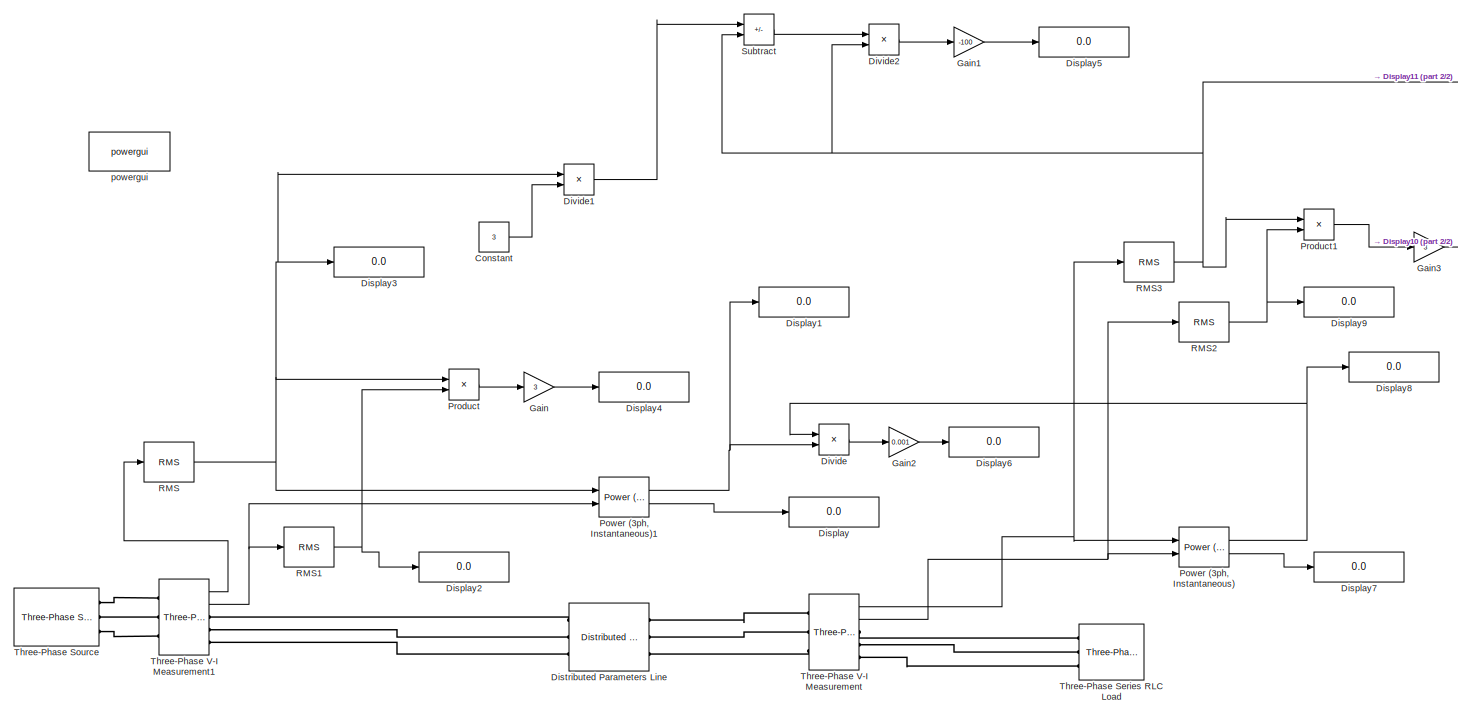
[diagram: root canvas - part 1/2, most of the canvas]
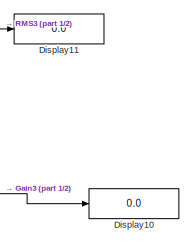
[diagram: root canvas - part 2/2, top right region]
MODEL slx_b03780a4cfd4
KIND model
CONFIG AbsTol = auto
CONFIG EnableMultiTasking = off
CONFIG FixedStep = auto
CONFIG MaxStep = auto
CONFIG MinStep = auto
CONFIG RelTol = 1e-3
CONFIG SampleTimeConstraint = Unconstrained
CONFIG SolverName = VariableStepAuto
CONFIG StartTime = 0.0
CONFIG StopTime = 10.0
BLOCK [Constant] Constant
  Value = 3
BLOCK [Display] Display
  Decimation = 1
  Ports = [1]
BLOCK [Display] Display1
  Decimation = 1
  Ports = [1]
BLOCK [Display] Display10
  Decimation = 1
  Ports = [1]
BLOCK [Display] Display11
  Decimation = 1
  Ports = [1]
BLOCK [Display] Display2
  Decimation = 1
  Ports = [1]
BLOCK [Display] Display3
  Decimation = 1
  Ports = [1]
BLOCK [Display] Display4
  Decimation = 1
  Ports = [1]
BLOCK [Display] Display5
  Decimation = 1
  Ports = [1]
BLOCK [Display] Display6
  Decimation = 1
  Ports = [1]
BLOCK [Display] Display7
  Decimation = 1
  Ports = [1]
BLOCK [Display] Display8
  Decimation = 1
  Ports = [1]
BLOCK [Display] Display9
  Decimation = 1
  Ports = [1]
BLOCK [Reference] Distributed Parameters Line  REF=spsDistributedParametersLineLib/Distributed Parameters Line
  Ports = [0, 0, 0, 0, 0, 3, 3]
  SourceBlock = spsDistributedParametersLineLib/Distributed Parameters Line
  SourceProductBaseCode = PS
  SourceType = Distributed Parameters Line
BLOCK [Product] Divide
  Inputs = */
  Ports = [2, 1]
BLOCK [Product] Divide1
  Inputs = */
  Ports = [2, 1]
BLOCK [Product] Divide2
  Inputs = */
  Ports = [2, 1]
BLOCK [Gain] Gain
  Gain = 3
BLOCK [Gain] Gain1
  Gain = -100
BLOCK [Gain] Gain2
  Gain = 0.001
BLOCK [Gain] Gain3
  Gain = 3
BLOCK [Reference] Power (3ph, Instantaneous)  REF=spsPower3phInstantaneousLib/Power
(3ph, Instantaneous)
  Ports = [2, 2]
  SourceBlock = spsPower3phInstantaneousLib/Power\n(3ph, Instantaneous)
  SourceProductBaseCode = PS
  SourceType = Power (3ph, Instantaneous)
BLOCK [Reference] Power (3ph, Instantaneous)1  REF=spsPower3phInstantaneousLib/Power
(3ph, Instantaneous)
  Ports = [2, 2]
  SourceBlock = spsPower3phInstantaneousLib/Power\n(3ph, Instantaneous)
  SourceProductBaseCode = PS
  SourceType = Power (3ph, Instantaneous)
BLOCK [Product] Product
  Ports = [2, 1]
BLOCK [Product] Product1
  Ports = [2, 1]
BLOCK [Reference] RMS  REF=spsRMSLib/RMS
  Ports = [1, 1]
  SourceBlock = spsRMSLib/RMS
  SourceProductBaseCode = PS
  SourceType = RMS
BLOCK [Reference] RMS1  REF=spsRMSLib/RMS
  Ports = [1, 1]
  SourceBlock = spsRMSLib/RMS
  SourceProductBaseCode = PS
  SourceType = RMS
BLOCK [Reference] RMS2  REF=spsRMSLib/RMS
  Ports = [1, 1]
  SourceBlock = spsRMSLib/RMS
  SourceProductBaseCode = PS
  SourceType = RMS
BLOCK [Reference] RMS3  REF=spsRMSLib/RMS
  Ports = [1, 1]
  SourceBlock = spsRMSLib/RMS
  SourceProductBaseCode = PS
  SourceType = RMS
BLOCK [Sum] Subtract
  IconShape = rectangular
  Inputs = +-
  Ports = [2, 1]
BLOCK [Reference] Three-Phase Series RLC Load  REF=spsThreePhaseSeriesRLCLoadLib/Three-Phase
Series RLC Load
  AttributesFormatString = \n
  NameLocation = right
  Ports = [0, 0, 0, 0, 0, 3]
  SourceBlock = spsThreePhaseSeriesRLCLoadLib/Three-Phase\nSeries RLC Load
  SourceProductBaseCode = PS
  SourceType = Three-Phase Series RLC Load
BLOCK [Reference] Three-Phase Source  REF=spsThreePhaseSourceLib/Three-Phase Source
  Ports = [0, 0, 0, 0, 0, 0, 3]
  SourceBlock = spsThreePhaseSourceLib/Three-Phase Source
  SourceProductBaseCode = PS
  SourceType = Three-Phase Source
BLOCK [Reference] Three-Phase V-I Measurement  REF=spsThreePhaseVIMeasurementLib/Three-Phase
V-I Measurement
  Ports = [0, 2, 0, 0, 0, 3, 3]
  SourceBlock = spsThreePhaseVIMeasurementLib/Three-Phase\nV-I Measurement
  SourceProductBaseCode = PS
  SourceType = Three-Phase VI Measurement
BLOCK [Reference] Three-Phase V-I Measurement1  REF=spsThreePhaseVIMeasurementLib/Three-Phase
V-I Measurement
  Ports = [0, 2, 0, 0, 0, 3, 3]
  SourceBlock = spsThreePhaseVIMeasurementLib/Three-Phase\nV-I Measurement
  SourceProductBaseCode = PS
  SourceType = Three-Phase VI Measurement
BLOCK [Reference] powergui  REF=spspowerguiLib/powergui
  Ports = []
  Priority = 1
  SourceBlock = spspowerguiLib/powergui
  SourceProductBaseCode = PS
  SourceType = PSB option menu block
LINE Constant:1 -> Divide1:2
LINE Divide1:1 -> Subtract:1
LINE Divide2:1 -> Gain1:1
LINE Divide:1 -> Gain2:1
LINE Gain1:1 -> Display5:1
LINE Gain2:1 -> Display6:1
LINE Gain3:1 -> Display10:1
LINE Gain:1 -> Display4:1
NET Power (3ph, Instantaneous)1:1 -> Display1:1, Divide:2
LINE Power (3ph, Instantaneous)1:2 -> Display:1
NET Power (3ph, Instantaneous):1 -> Display8:1, Divide:1
LINE Power (3ph, Instantaneous):2 -> Display7:1
LINE Product1:1 -> Gain3:1
LINE Product:1 -> Gain:1
NET RMS1:1 -> Display2:1, Product:2
NET RMS2:1 -> Display9:1, Product1:2
NET RMS3:1 -> Display11:1, Divide2:2, Product1:1, Subtract:2
NET RMS:1 -> Display3:1, Divide1:1, Power (3ph, Instantaneous)1:1, Product:1
LINE Subtract:1 -> Divide2:1
LINE Three-Phase V-I Measurement1:1 -> RMS:1
NET Three-Phase V-I Measurement1:2 -> Power (3ph, Instantaneous)1:2, RMS1:1
NET Three-Phase V-I Measurement:1 -> Power (3ph, Instantaneous):1, RMS3:1
NET Three-Phase V-I Measurement:2 -> Power (3ph, Instantaneous):2, RMS2:1
PLINE Distributed Parameters Line:LConn1 -- Three-Phase V-I Measurement1:RConn1
PLINE Distributed Parameters Line:LConn2 -- Three-Phase V-I Measurement1:RConn2
PLINE Distributed Parameters Line:LConn3 -- Three-Phase V-I Measurement1:RConn3
PLINE Distributed Parameters Line:RConn1 -- Three-Phase V-I Measurement:LConn1
PLINE Distributed Parameters Line:RConn2 -- Three-Phase V-I Measurement:LConn2
PLINE Distributed Parameters Line:RConn3 -- Three-Phase V-I Measurement:LConn3
PLINE Three-Phase Series RLC Load:LConn1 -- Three-Phase V-I Measurement:RConn1
PLINE Three-Phase Series RLC Load:LConn2 -- Three-Phase V-I Measurement:RConn2
PLINE Three-Phase Series RLC Load:LConn3 -- Three-Phase V-I Measurement:RConn3
PLINE Three-Phase Source:RConn1 -- Three-Phase V-I Measurement1:LConn1
PLINE Three-Phase Source:RConn2 -- Three-Phase V-I Measurement1:LConn2
PLINE Three-Phase Source:RConn3 -- Three-Phase V-I Measurement1:LConn3
note: NET lines group one-source signal fan-out (src -> all destinations, sorted); 1:1 wires keep LINE
